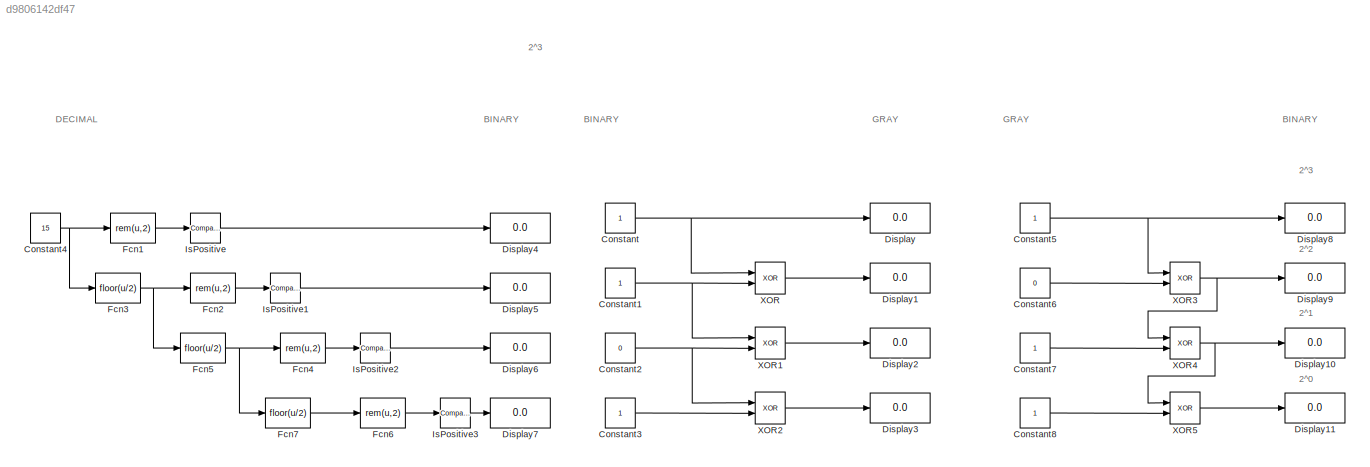
MODEL slx_d9806142df47
KIND model
CONFIG AbsTol = auto
CONFIG EnableMultiTasking = off
CONFIG FixedStep = auto
CONFIG MaxStep = auto
CONFIG MinStep = auto
CONFIG RelTol = 1e-3
CONFIG SampleTimeConstraint = Unconstrained
CONFIG Solver = VariableStepAuto
CONFIG SolverName = VariableStepAuto
CONFIG StartTime = 0.0
CONFIG StopTime = 10.0
BLOCK [Constant] Constant
BLOCK [Constant] Constant1
BLOCK [Constant] Constant2
  Value = 0
BLOCK [Constant] Constant3
BLOCK [Constant] Constant4
  Value = 15
BLOCK [Constant] Constant5
BLOCK [Constant] Constant6
  Value = 0
BLOCK [Constant] Constant7
BLOCK [Constant] Constant8
BLOCK [Display] Display
  Decimation = 1
  Ports = [1]
BLOCK [Display] Display1
  Decimation = 1
  Ports = [1]
BLOCK [Display] Display10
  Decimation = 1
  Ports = [1]
BLOCK [Display] Display11
  Decimation = 1
  Ports = [1]
BLOCK [Display] Display2
  Decimation = 1
  Ports = [1]
BLOCK [Display] Display3
  Decimation = 1
  Ports = [1]
BLOCK [Display] Display4
  Decimation = 1
  Ports = [1]
BLOCK [Display] Display5
  Decimation = 1
  Ports = [1]
BLOCK [Display] Display6
  Decimation = 1
  Ports = [1]
BLOCK [Display] Display7
  Decimation = 1
  Ports = [1]
BLOCK [Display] Display8
  Decimation = 1
  Ports = [1]
BLOCK [Display] Display9
  Decimation = 1
  Ports = [1]
BLOCK [Fcn] Fcn1
  Expr = rem(u,2)
BLOCK [Fcn] Fcn2
  Expr = rem(u,2)
BLOCK [Fcn] Fcn3
  Expr = floor(u/2)
BLOCK [Fcn] Fcn4
  Expr = rem(u,2)
BLOCK [Fcn] Fcn5
  Expr = floor(u/2)
BLOCK [Fcn] Fcn6
  Expr = rem(u,2)
BLOCK [Fcn] Fcn7
  Expr = floor(u/2)
BLOCK [Reference] IsPositive  REF=simulink/Logic and Bit
Operations/Compare
To Zero
  Ports = [1, 1]
  SourceBlock = simulink/Logic and Bit\nOperations/Compare\nTo Zero
  SourceProductBaseCode = SL
  SourceProductName = Simulink
  SourceType = Compare To Zero
BLOCK [Reference] IsPositive1  REF=simulink/Logic and Bit
Operations/Compare
To Zero
  Ports = [1, 1]
  SourceBlock = simulink/Logic and Bit\nOperations/Compare\nTo Zero
  SourceProductBaseCode = SL
  SourceProductName = Simulink
  SourceType = Compare To Zero
BLOCK [Reference] IsPositive2  REF=simulink/Logic and Bit
Operations/Compare
To Zero
  Ports = [1, 1]
  SourceBlock = simulink/Logic and Bit\nOperations/Compare\nTo Zero
  SourceProductBaseCode = SL
  SourceProductName = Simulink
  SourceType = Compare To Zero
BLOCK [Reference] IsPositive3  REF=simulink/Logic and Bit
Operations/Compare
To Zero
  Ports = [1, 1]
  SourceBlock = simulink/Logic and Bit\nOperations/Compare\nTo Zero
  SourceProductBaseCode = SL
  SourceProductName = Simulink
  SourceType = Compare To Zero
BLOCK [Logic] XOR
  AllPortsSameDT = off
  IconShape = distinctive
  Operator = XOR
  OutDataTypeStr = boolean
  Ports = [2, 1]
BLOCK [Logic] XOR1
  AllPortsSameDT = off
  IconShape = distinctive
  Operator = XOR
  OutDataTypeStr = boolean
  Ports = [2, 1]
BLOCK [Logic] XOR2
  AllPortsSameDT = off
  IconShape = distinctive
  Operator = XOR
  OutDataTypeStr = boolean
  Ports = [2, 1]
BLOCK [Logic] XOR3
  AllPortsSameDT = off
  IconShape = distinctive
  Operator = XOR
  OutDataTypeStr = boolean
  Ports = [2, 1]
BLOCK [Logic] XOR4
  AllPortsSameDT = off
  IconShape = distinctive
  Operator = XOR
  OutDataTypeStr = boolean
  Ports = [2, 1]
BLOCK [Logic] XOR5
  AllPortsSameDT = off
  IconShape = distinctive
  Operator = XOR
  OutDataTypeStr = boolean
  Ports = [2, 1]
ANNOTATION (root): 2^0
ANNOTATION (root): 2^1
ANNOTATION (root): 2^2
ANNOTATION (root): 2^3
ANNOTATION (root): BINARY
ANNOTATION (root): DECIMAL
ANNOTATION (root): GRAY
NET Constant1:1 -> XOR1:1, XOR:2
NET Constant2:1 -> XOR1:2, XOR2:1
LINE Constant3:1 -> XOR2:2
NET Constant4:1 -> Fcn1:1, Fcn3:1
NET Constant5:1 -> Display8:1, XOR3:1
LINE Constant6:1 -> XOR3:2
LINE Constant7:1 -> XOR4:2
LINE Constant8:1 -> XOR5:2
NET Constant:1 -> Display:1, XOR:1
LINE Fcn1:1 -> IsPositive:1
LINE Fcn2:1 -> IsPositive1:1
NET Fcn3:1 -> Fcn2:1, Fcn5:1
LINE Fcn4:1 -> IsPositive2:1
NET Fcn5:1 -> Fcn4:1, Fcn7:1
LINE Fcn6:1 -> IsPositive3:1
LINE Fcn7:1 -> Fcn6:1
LINE IsPositive1:1 -> Display5:1
LINE IsPositive2:1 -> Display6:1
LINE IsPositive3:1 -> Display7:1
LINE IsPositive:1 -> Display4:1
LINE XOR1:1 -> Display2:1
LINE XOR2:1 -> Display3:1
NET XOR3:1 -> Display9:1, XOR4:1
NET XOR4:1 -> Display10:1, XOR5:1
LINE XOR5:1 -> Display11:1
LINE XOR:1 -> Display1:1
note: NET lines group one-source signal fan-out (src -> all destinations, sorted); 1:1 wires keep LINE
